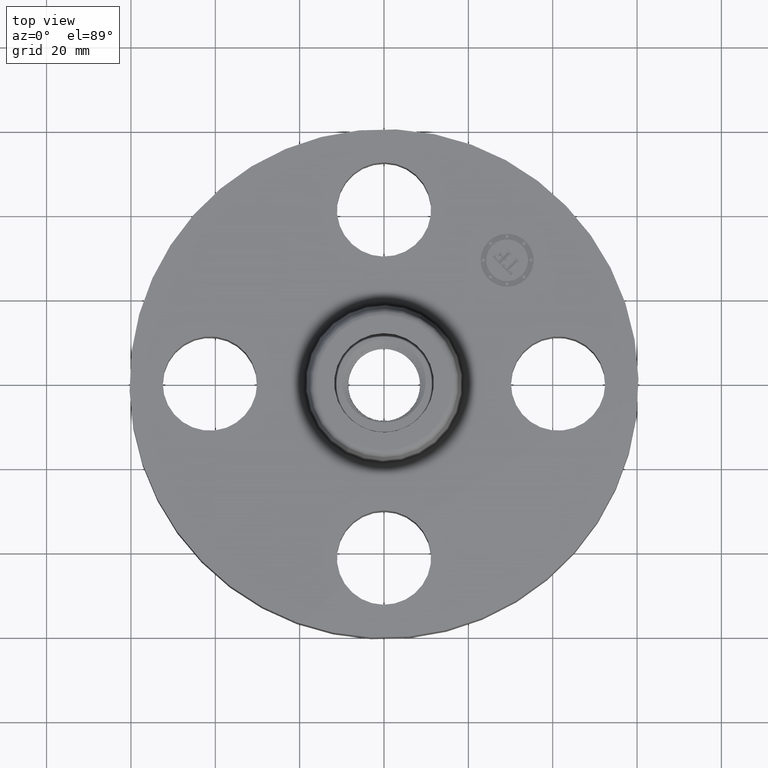
[diagram: clean part render]
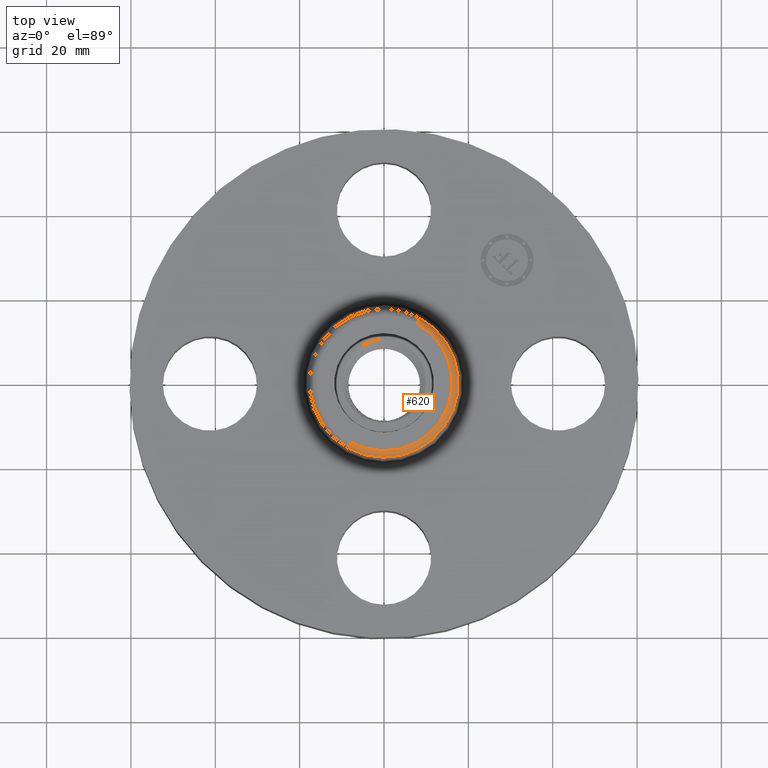
[diagram: same view with one face highlighted and labeled with its STEP entity id]
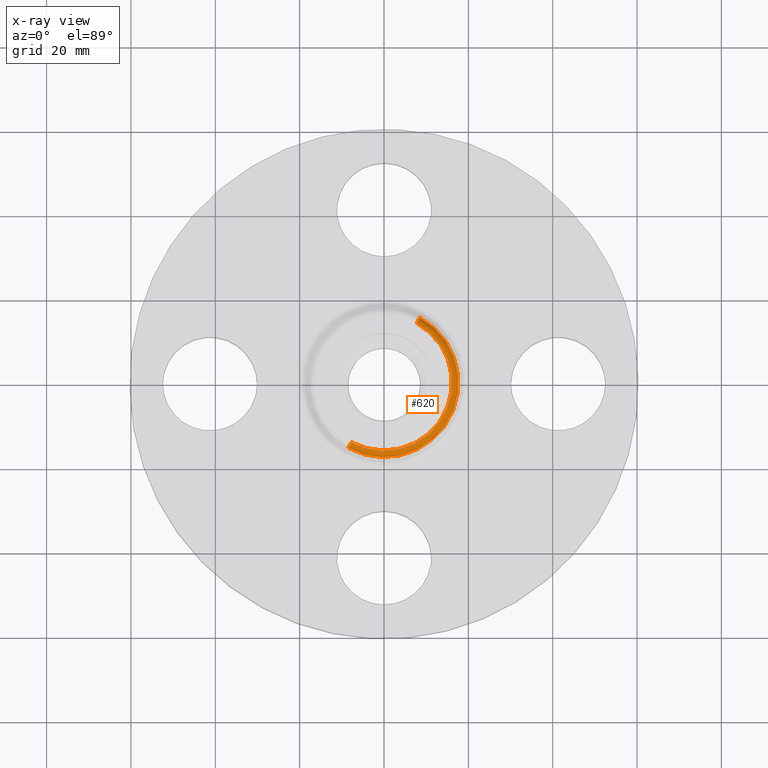
[diagram: x-ray of the same camera — body ghosted, the highlighted face saturated]
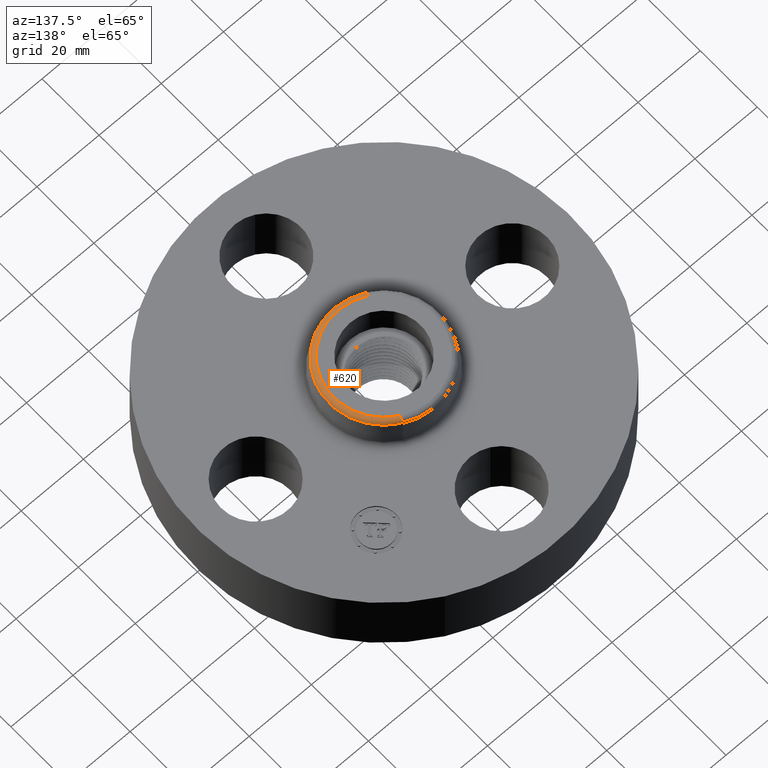
[diagram: same view with one face highlighted and labeled with its STEP entity id]
A machine part, top view. The second image highlights one B-rep face of the part: STEP entity #620.
The next image is the same camera in x-ray: the body ghosted, the highlighted face saturated — about 0% of this face is hidden behind the body in this view.
A second angle (auxiliary view) of the same face is appended — the face is thin or edge-on in the first view.
In plain terms, the highlighted toroidal blend (fillet) surface has major radius 16.1141 mm and minor (blend) radius 1.524 mm.
Its self-contained STEP definition (entity closure, byte-faithful):
#561=AXIS2_PLACEMENT_3D('Circle Axis2P3D',#559,#560,$) ;
#593=AXIS2_PLACEMENT_3D('Torus Axis2P3D',#590,#591,#592) ;
#597=AXIS2_PLACEMENT_3D('Circle Axis2P3D',#595,#596,$) ;
#604=AXIS2_PLACEMENT_3D('Circle Axis2P3D',#602,#603,$) ;
#611=AXIS2_PLACEMENT_3D('Circle Axis2P3D',#609,#610,$) ;
#556=CARTESIAN_POINT('Vertex',(0.332482332294,0.608604826951,1.20041889066)) ;
#559=CARTESIAN_POINT('Axis2P3D Location',(0.,0.,1.20041889066)) ;
#563=CARTESIAN_POINT('Vertex',(-0.332482332294,-0.608604826951,1.20041889066)) ;
#590=CARTESIAN_POINT('Axis2P3D Location',(0.,0.,1.19)) ;
#595=CARTESIAN_POINT('Axis2P3D Location',(0.304153813049,0.556749820299,1.19)) ;
#599=CARTESIAN_POINT('Vertex',(0.304153813049,0.556749820299,1.25000000001)) ;
#602=CARTESIAN_POINT('Axis2P3D Location',(0.,0.,1.25000000001)) ;
#606=CARTESIAN_POINT('Vertex',(-0.304153813049,-0.556749820299,1.25000000001)) ;
#609=CARTESIAN_POINT('Axis2P3D Location',(-0.304153813049,-0.556749820299,1.19)) ;
#560=DIRECTION('Axis2P3D Direction',(0.,0.,-0.0393700787402)) ;
#591=DIRECTION('Axis2P3D Direction',(0.,0.,-0.0393700787402)) ;
#592=DIRECTION('Axis2P3D XDirection',(-0.0188750212049,-0.0345504945626,0.)) ;
#596=DIRECTION('Axis2P3D Direction',(-0.0345504945626,0.0188750212049,0.)) ;
#603=DIRECTION('Axis2P3D Direction',(0.,0.,-0.0393700787402)) ;
#610=DIRECTION('Axis2P3D Direction',(0.0345504945626,-0.0188750212049,0.)) ;
#615=ORIENTED_EDGE('',*,*,#565,.F.) ;
#616=ORIENTED_EDGE('',*,*,#601,.T.) ;
#617=ORIENTED_EDGE('',*,*,#608,.T.) ;
#618=ORIENTED_EDGE('',*,*,#613,.F.) ;
#620=ADVANCED_FACE('PartBody',(#619),#594,.T.) ;
#562=CIRCLE('generated circle',#561,0.693501504451) ;
#598=CIRCLE('generated circle',#597,0.0600000000002) ;
#605=CIRCLE('generated circle',#604,0.63441303927) ;
#612=CIRCLE('generated circle',#611,0.0600000000002) ;
#594=TOROIDAL_SURFACE('homeo Torus',#593,0.63441303927,0.0600000000002) ;
#565=EDGE_CURVE('',#557,#564,#562,.T.) ;
#601=EDGE_CURVE('',#557,#600,#598,.F.) ;
#608=EDGE_CURVE('',#600,#607,#605,.T.) ;
#613=EDGE_CURVE('',#564,#607,#612,.F.) ;
#614=EDGE_LOOP('',(#615,#616,#617,#618)) ;
#619=FACE_OUTER_BOUND('',#614,.T.) ;
#557=VERTEX_POINT('',#556) ;
#564=VERTEX_POINT('',#563) ;
#600=VERTEX_POINT('',#599) ;
#607=VERTEX_POINT('',#606) ;